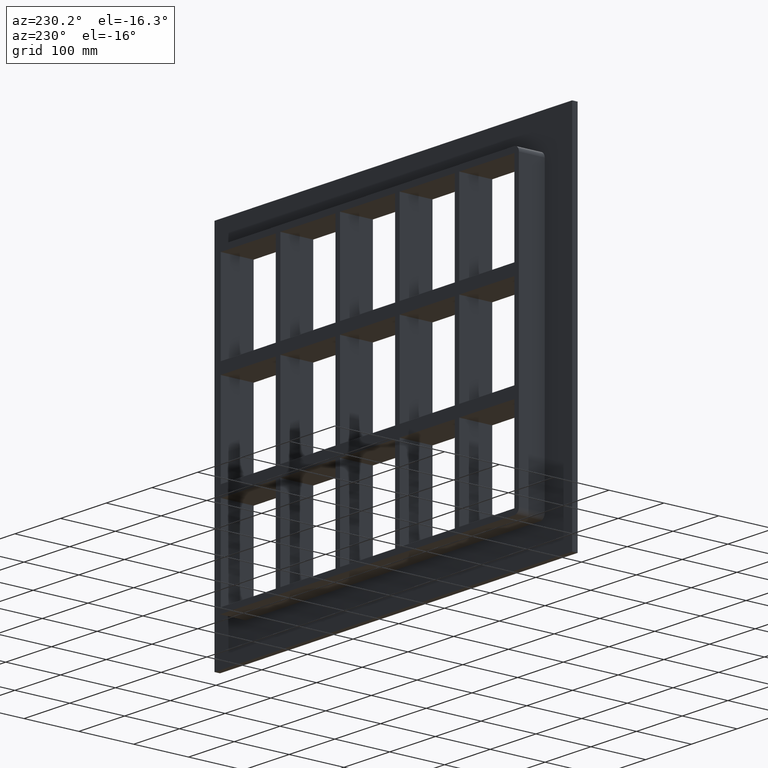
[diagram: clean part render]
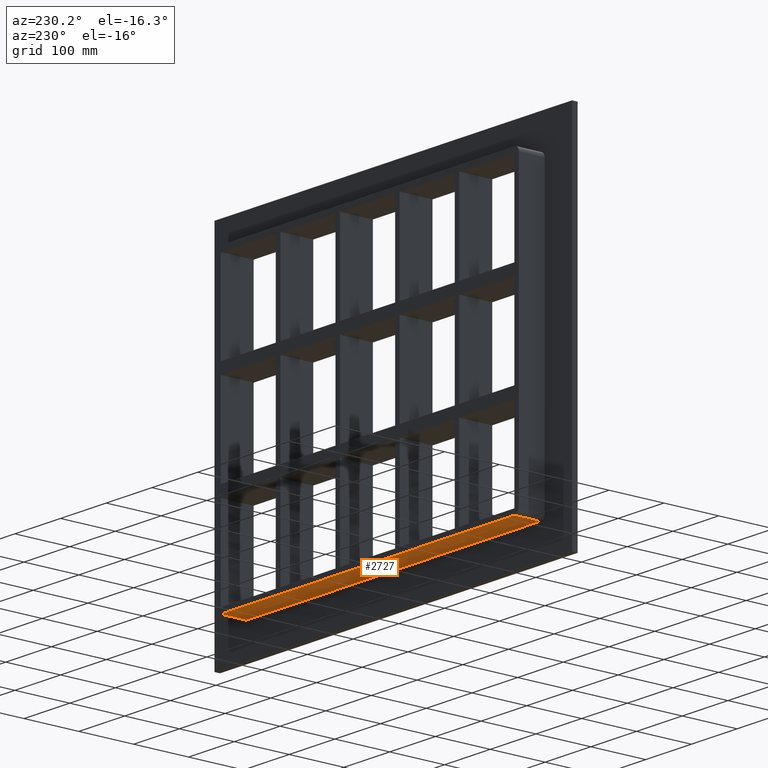
[diagram: same view with one face highlighted and labeled with its STEP entity id]
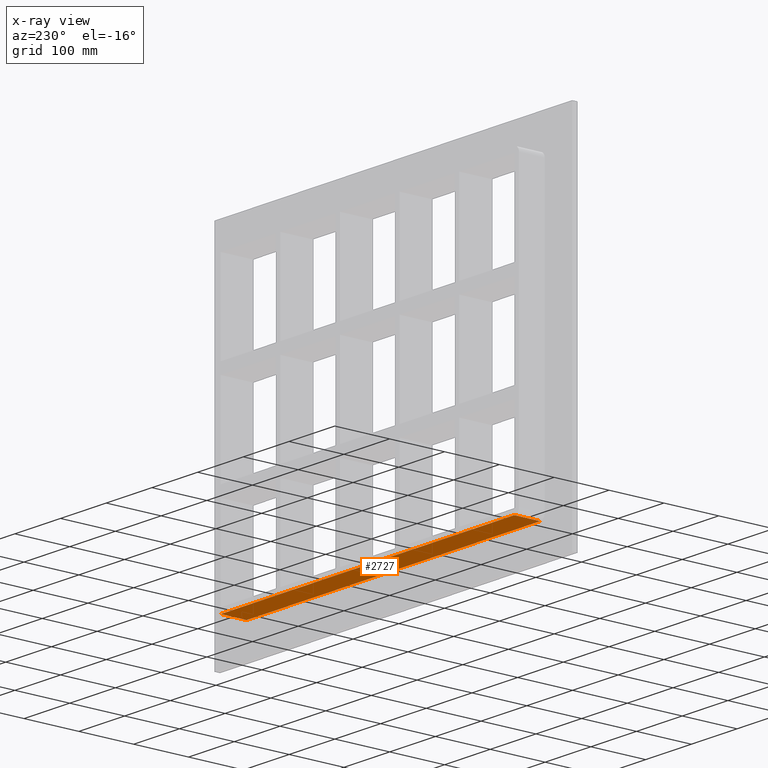
[diagram: x-ray of the same camera — body ghosted, the highlighted face saturated]
A machine part, auxiliary view. The second image highlights one B-rep face of the part: STEP entity #2727.
The next image is the same camera in x-ray: the body ghosted, the highlighted face saturated — about 0% of this face is hidden behind the body in this view.
In plain terms, the highlighted planar face has unit normal (0, 0, -1).
Its self-contained STEP definition (entity closure, byte-faithful):
#845=CARTESIAN_POINT('',(321.25,57.0,-269.25000000000006));
#846=VERTEX_POINT('',#845);
#856=CARTESIAN_POINT('',(-321.25,57.0,-269.25000000000006));
#857=VERTEX_POINT('',#856);
#858=CARTESIAN_POINT('',(321.25,57.0,-269.25000000000006));
#859=DIRECTION('',(-1.0,0.0,0.0));
#860=VECTOR('',#859,642.5);
#861=LINE('',#858,#860);
#862=EDGE_CURVE('',#846,#857,#861,.T.);
#2287=CARTESIAN_POINT('',(-321.25,10.0,-269.25000000000006));
#2288=VERTEX_POINT('',#2287);
#2298=CARTESIAN_POINT('',(321.25,10.0,-269.25000000000006));
#2299=VERTEX_POINT('',#2298);
#2300=CARTESIAN_POINT('',(321.25,10.0,-269.25000000000006));
#2301=DIRECTION('',(-1.0,0.0,0.0));
#2302=VECTOR('',#2301,642.5);
#2303=LINE('',#2300,#2302);
#2304=EDGE_CURVE('',#2299,#2288,#2303,.T.);
#2666=CARTESIAN_POINT('',(321.25,10.0,-269.25000000000006));
#2667=DIRECTION('',(0.0,1.0,0.0));
#2668=VECTOR('',#2667,47.0);
#2669=LINE('',#2666,#2668);
#2670=EDGE_CURVE('',#2299,#846,#2669,.T.);
#2711=CARTESIAN_POINT('',(331.25,0.0,-269.25000000000006));
#2712=DIRECTION('',(0.0,0.0,-1.0));
#2713=DIRECTION('',(-1.0,0.0,0.0));
#2714=AXIS2_PLACEMENT_3D('',#2711,#2712,#2713);
#2715=PLANE('',#2714);
#2716=ORIENTED_EDGE('',*,*,#2304,.T.);
#2717=CARTESIAN_POINT('',(-321.25,57.0,-269.25000000000006));
#2718=DIRECTION('',(0.0,-1.0,0.0));
#2719=VECTOR('',#2718,47.0);
#2720=LINE('',#2717,#2719);
#2721=EDGE_CURVE('',#857,#2288,#2720,.T.);
#2722=ORIENTED_EDGE('',*,*,#2721,.F.);
#2723=ORIENTED_EDGE('',*,*,#862,.F.);
#2724=ORIENTED_EDGE('',*,*,#2670,.F.);
#2725=EDGE_LOOP('',(#2716,#2722,#2723,#2724));
#2726=FACE_OUTER_BOUND('',#2725,.T.);
#2727=ADVANCED_FACE('',(#2726),#2715,.T.);